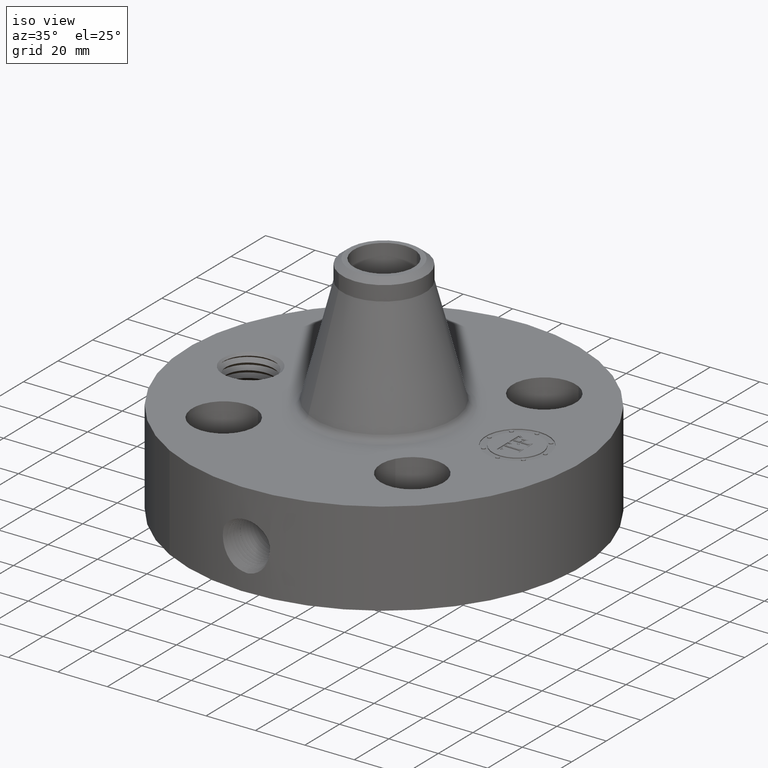
[diagram: clean part render]
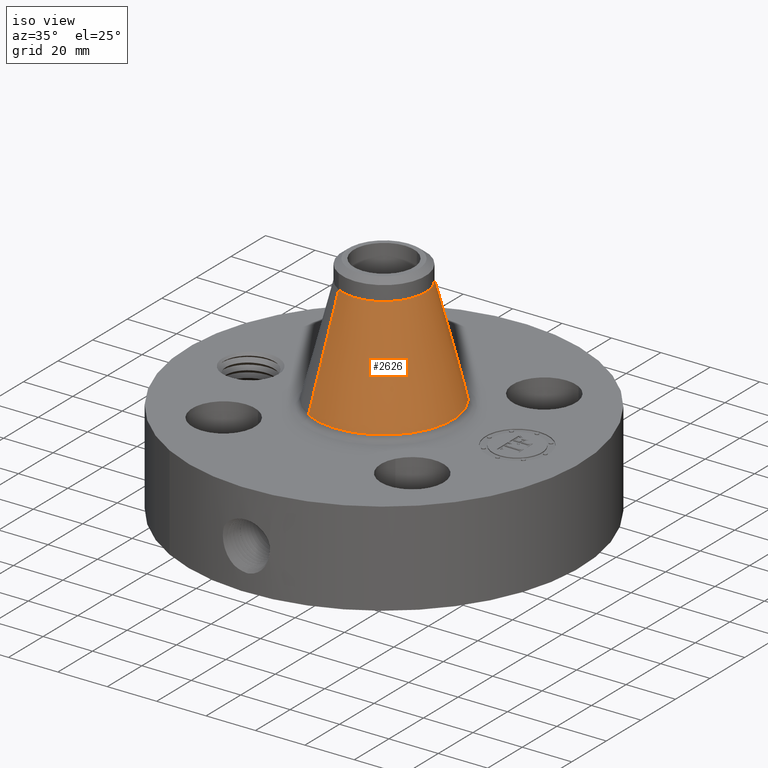
[diagram: same view with one face highlighted and labeled with its STEP entity id]
A machine part, iso view. The second image highlights one B-rep face of the part: STEP entity #2626.
In plain terms, the highlighted conical surface has half-angle 14.447 deg.
Its self-contained STEP definition (entity closure, byte-faithful):
#1926=AXIS2_PLACEMENT_3D('Circle Axis2P3D',#1924,#1925,$) ;
#2599=AXIS2_PLACEMENT_3D('Cone Axis2P3D',#2596,#2597,#2598) ;
#2610=AXIS2_PLACEMENT_3D('Circle Axis2P3D',#2608,#2609,$) ;
#1921=CARTESIAN_POINT('Vertex',(0.528229843363,0.966918242518,1.84006221555)) ;
#1924=CARTESIAN_POINT('Axis2P3D Location',(0.,0.,1.84006221555)) ;
#1928=CARTESIAN_POINT('Vertex',(-0.528229843363,-0.966918242518,1.84006221555)) ;
#2596=CARTESIAN_POINT('Axis2P3D Location',(0.,0.,3.55492912713)) ;
#2601=CARTESIAN_POINT('Line Origine',(0.422325349421,0.773061366684,2.69749567134)) ;
#2605=CARTESIAN_POINT('Vertex',(0.31642085548,0.57920449085,3.55492912713)) ;
#2608=CARTESIAN_POINT('Axis2P3D Location',(0.,0.,3.55492912713)) ;
#2612=CARTESIAN_POINT('Vertex',(-0.31642085548,-0.57920449085,3.55492912713)) ;
#2615=CARTESIAN_POINT('Line Origine',(-0.422325349421,-0.773061366684,2.69749567134)) ;
#1925=DIRECTION('Axis2P3D Direction',(0.,0.,-0.0393700787402)) ;
#2597=DIRECTION('Axis2P3D Direction',(0.,0.,-0.0393700787402)) ;
#2598=DIRECTION('Axis2P3D XDirection',(-0.0188750212049,-0.0345504945626,0.)) ;
#2602=DIRECTION('Vector Direction',(0.00470896930408,0.00861971049304,-0.0381251793322)) ;
#2609=DIRECTION('Axis2P3D Direction',(0.,0.,-0.0393700787402)) ;
#2616=DIRECTION('Vector Direction',(-0.00470896930408,-0.00861971049304,-0.0381251793322)) ;
#2603=VECTOR('Line Direction',#2602,0.0393700787402) ;
#2617=VECTOR('Line Direction',#2616,0.0393700787402) ;
#2621=ORIENTED_EDGE('',*,*,#1930,.F.) ;
#2622=ORIENTED_EDGE('',*,*,#2607,.T.) ;
#2623=ORIENTED_EDGE('',*,*,#2614,.T.) ;
#2624=ORIENTED_EDGE('',*,*,#2619,.F.) ;
#2626=ADVANCED_FACE('PartBody',(#2625),#2600,.T.) ;
#1927=CIRCLE('generated circle',#1926,1.10179746557) ;
#2611=CIRCLE('generated circle',#2610,0.660000000003) ;
#2600=CONICAL_SURFACE('Cone',#2599,0.660000000003,0.252144826006) ;
#1930=EDGE_CURVE('',#1922,#1929,#1927,.T.) ;
#2607=EDGE_CURVE('',#1922,#2606,#2604,.F.) ;
#2614=EDGE_CURVE('',#2606,#2613,#2611,.T.) ;
#2619=EDGE_CURVE('',#1929,#2613,#2618,.F.) ;
#2620=EDGE_LOOP('',(#2621,#2622,#2623,#2624)) ;
#2625=FACE_OUTER_BOUND('',#2620,.T.) ;
#2604=LINE('Line',#2601,#2603) ;
#2618=LINE('Line',#2615,#2617) ;
#1922=VERTEX_POINT('',#1921) ;
#1929=VERTEX_POINT('',#1928) ;
#2606=VERTEX_POINT('',#2605) ;
#2613=VERTEX_POINT('',#2612) ;